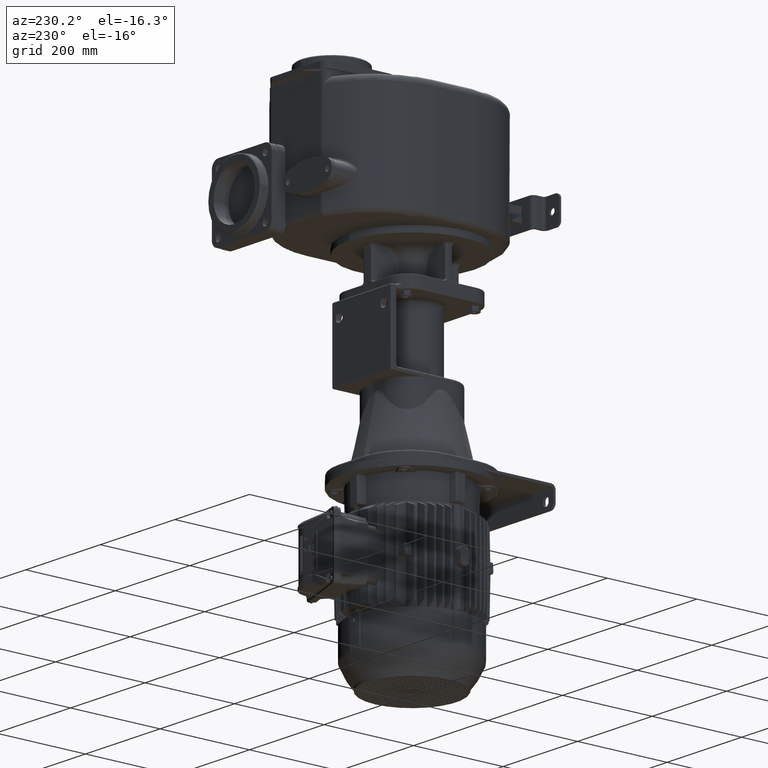
[diagram: clean part render]
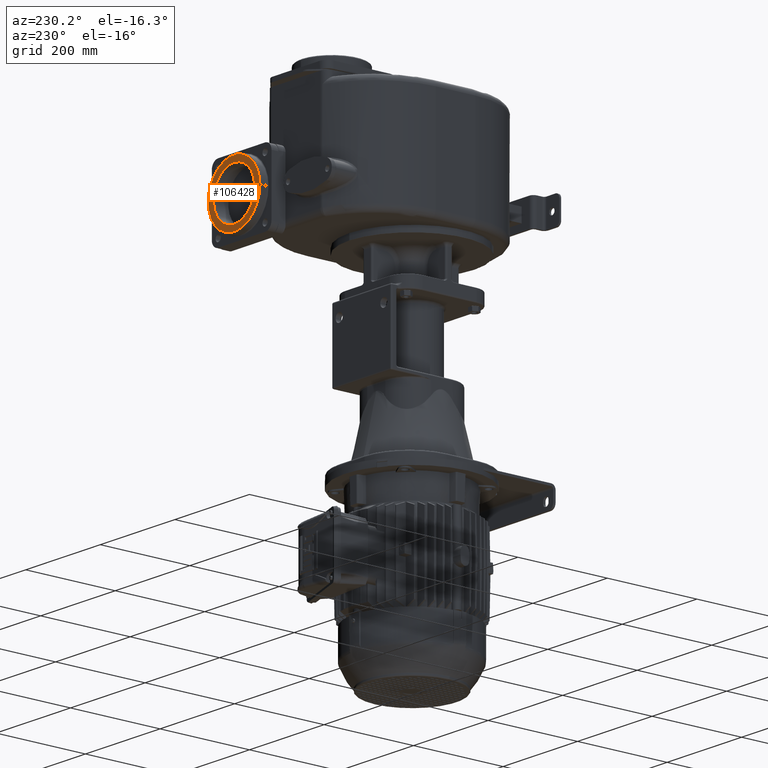
[diagram: same view with one face highlighted and labeled with its STEP entity id]
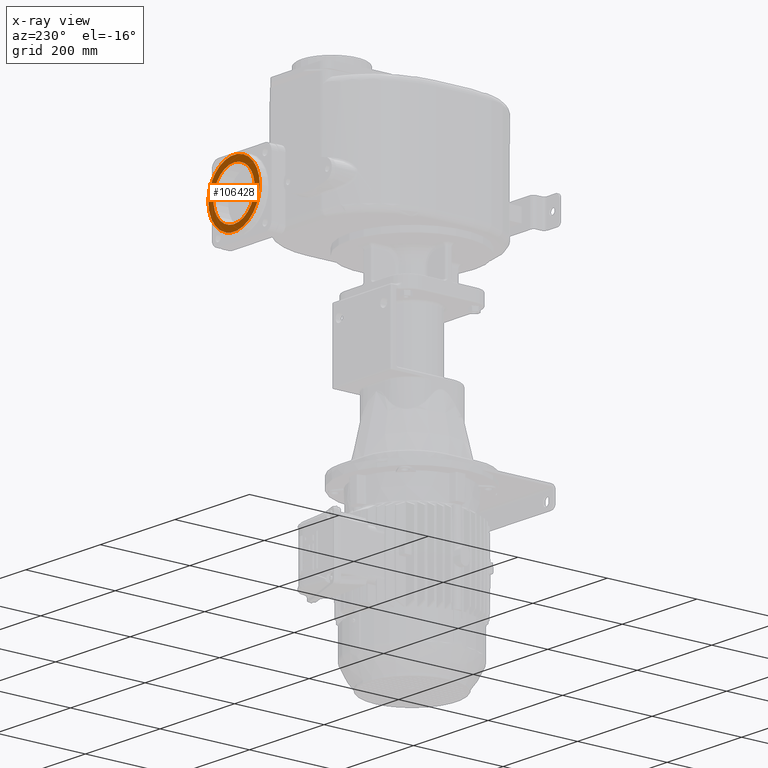
[diagram: x-ray of the same camera — body ghosted, the highlighted face saturated]
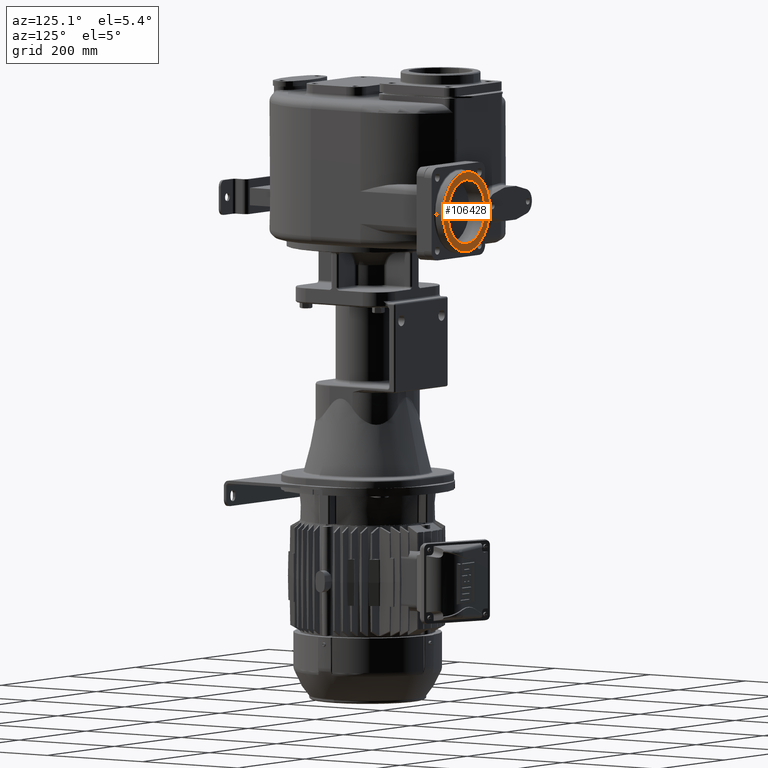
[diagram: same view with one face highlighted and labeled with its STEP entity id]
A machine part, auxiliary view. The second image highlights one B-rep face of the part: STEP entity #106428.
The next image is the same camera in x-ray: the body ghosted, the highlighted face saturated — about 0% of this face is hidden behind the body in this view.
A second angle (auxiliary view) of the same face is appended — the face is thin or edge-on in the first view.
In plain terms, the highlighted planar face has unit normal (0, 1, 0).
Its self-contained STEP definition (entity closure, byte-faithful):
#43343=CARTESIAN_POINT('',(1.24E2,4.645E2,-2.467989262907E-13));
#43344=DIRECTION('',(0.E0,1.E0,0.E0));
#43345=DIRECTION('',(1.E0,0.E0,0.E0));
#43346=AXIS2_PLACEMENT_3D('',#43343,#43344,#43345);
#43348=CARTESIAN_POINT('',(1.24E2,4.645E2,0.E0));
#43349=DIRECTION('',(0.E0,1.E0,0.E0));
#43350=DIRECTION('',(-1.E0,0.E0,0.E0));
#43351=AXIS2_PLACEMENT_3D('',#43348,#43349,#43350);
#43353=CARTESIAN_POINT('',(1.24E2,4.645E2,0.E0));
#43354=DIRECTION('',(0.E0,1.E0,0.E0));
#43355=DIRECTION('',(0.E0,0.E0,1.E0));
#43356=AXIS2_PLACEMENT_3D('',#43353,#43354,#43355);
#43358=CARTESIAN_POINT('',(1.24E2,4.645E2,0.E0));
#43359=DIRECTION('',(0.E0,1.E0,0.E0));
#43360=DIRECTION('',(0.E0,0.E0,-1.E0));
#43361=AXIS2_PLACEMENT_3D('',#43358,#43359,#43360);
#44529=CARTESIAN_POINT('',(1.93E2,4.645E2,0.E0));
#44530=CARTESIAN_POINT('',(5.5E1,4.645E2,-3.953768332274E-14));
#44531=VERTEX_POINT('',#44529);
#44532=VERTEX_POINT('',#44530);
#44537=CARTESIAN_POINT('',(1.24E2,4.645E2,5.525E1));
#44538=CARTESIAN_POINT('',(1.24E2,4.645E2,-5.525E1));
#44539=VERTEX_POINT('',#44537);
#44540=VERTEX_POINT('',#44538);
#106412=CARTESIAN_POINT('',(1.24E2,4.645E2,0.E0));
#106413=DIRECTION('',(0.E0,1.E0,0.E0));
#106414=DIRECTION('',(-1.E0,0.E0,0.E0));
#106415=AXIS2_PLACEMENT_3D('',#106412,#106413,#106414);
#106416=PLANE('',#106415);
#106417=ORIENTED_EDGE('',*,*,#106402,.F.);
#106419=ORIENTED_EDGE('',*,*,#106418,.F.);
#106420=EDGE_LOOP('',(#106417,#106419));
#106421=FACE_OUTER_BOUND('',#106420,.F.);
#106423=ORIENTED_EDGE('',*,*,#106422,.T.);
#106425=ORIENTED_EDGE('',*,*,#106424,.T.);
#106426=EDGE_LOOP('',(#106423,#106425));
#106427=FACE_BOUND('',#106426,.F.);
#106428=ADVANCED_FACE('',(#106421,#106427),#106416,.T.);
#43347=CIRCLE('',#43346,6.9E1);
#43352=CIRCLE('',#43351,6.9E1);
#43357=CIRCLE('',#43356,5.525E1);
#43362=CIRCLE('',#43361,5.525E1);
#106402=EDGE_CURVE('',#44531,#44532,#43347,.T.);
#106418=EDGE_CURVE('',#44532,#44531,#43352,.T.);
#106422=EDGE_CURVE('',#44539,#44540,#43357,.T.);
#106424=EDGE_CURVE('',#44540,#44539,#43362,.T.);